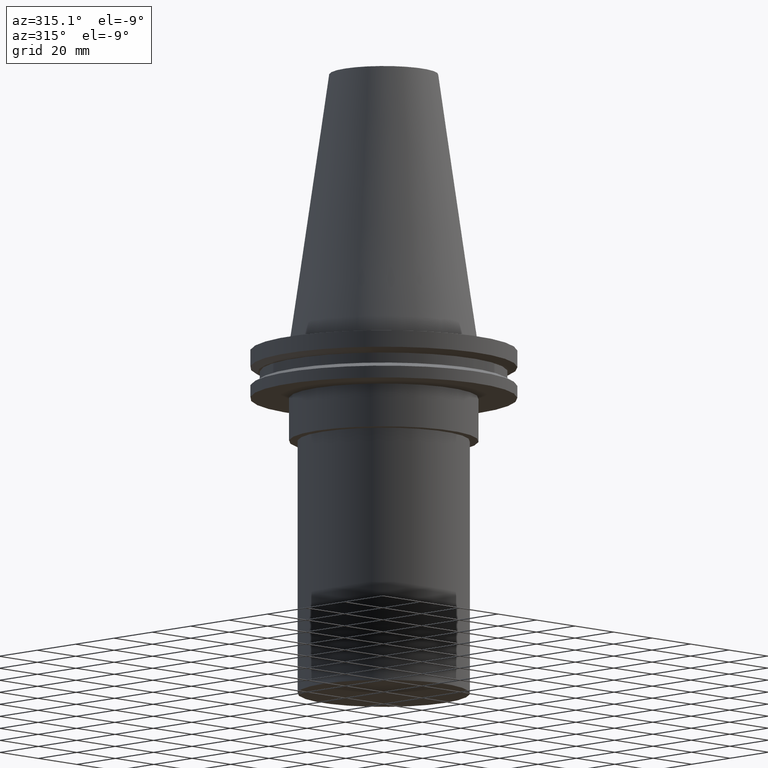
[diagram: clean part render]
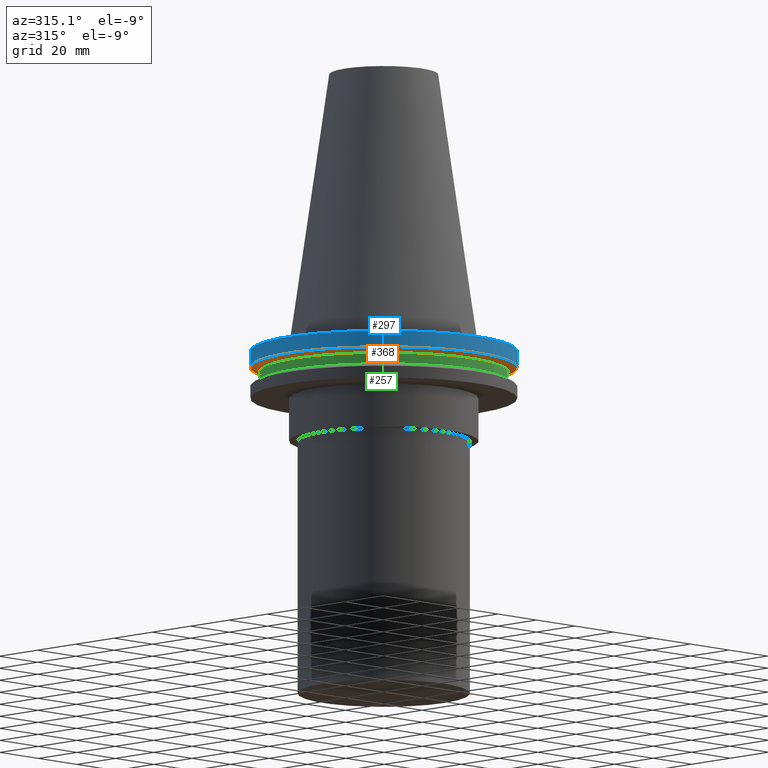
[diagram: same view with three faces highlighted in distinct colors, each labeled with its STEP entity id]
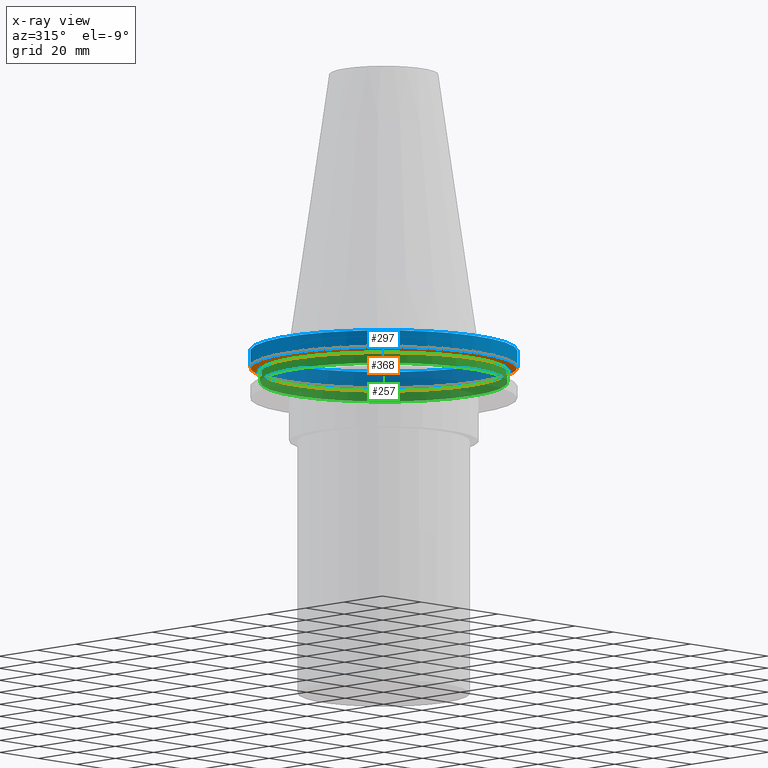
[diagram: x-ray of the same camera — body ghosted, the three highlighted faces saturated]
A machine part, auxiliary view with three faces highlighted in distinct colors.
The next image is the same camera in x-ray (body ghosted, the three faces saturated) — at least one of them is partly hidden behind the body in this view.
Their STEP definitions:

[orange] entity #368 — the highlighted conical surface has half-angle 60 deg.
#34 = DIRECTION ( 'NONE',  ( -0.000000000000000000, -0.000000000000000000, 1.000000000000000000 ) ) ;
#52 = CIRCLE ( 'NONE', #176, 49.21500000000000341 ) ;
#54 = DIRECTION ( 'NONE',  ( 1.000000000000000000, 0.000000000000000000, 0.000000000000000000 ) ) ;
#61 = CARTESIAN_POINT ( 'NONE',  ( 0.000000000000000000, 0.000000000000000000, -9.204999999999991189 ) ) ;
#64 = DIRECTION ( 'NONE',  ( 1.000000000000000000, 0.000000000000000000, 0.000000000000000000 ) ) ;
#69 = VERTEX_POINT ( 'NONE', #385 ) ;
#103 = EDGE_LOOP ( 'NONE', ( #109 ) ) ;
#106 = AXIS2_PLACEMENT_3D ( 'NONE', #150, #337, #54 ) ;
#109 = ORIENTED_EDGE ( 'NONE', *, *, #201, .T. ) ;
#129 = AXIS2_PLACEMENT_3D ( 'NONE', #61, #34, #64 ) ;
#150 = CARTESIAN_POINT ( 'NONE',  ( 0.000000000000000000, 0.000000000000000000, -9.204999999999991189 ) ) ;
#151 = DIRECTION ( 'NONE',  ( -0.000000000000000000, -0.000000000000000000, 1.000000000000000000 ) ) ;
#152 = DIRECTION ( 'NONE',  ( 1.000000000000000000, 0.000000000000000000, 0.000000000000000000 ) ) ;
#158 = CIRCLE ( 'NONE', #106, 46.43919780457007818 ) ;
#176 = AXIS2_PLACEMENT_3D ( 'NONE', #303, #151, #152 ) ;
#183 = EDGE_CURVE ( 'NONE', #69, #69, #52, .T. ) ;
#201 = EDGE_CURVE ( 'NONE', #320, #320, #158, .T. ) ;
#251 = FACE_BOUND ( 'NONE', #103, .T. ) ;
#280 = FACE_OUTER_BOUND ( 'NONE', #353, .T. ) ;
#293 = CARTESIAN_POINT ( 'NONE',  ( 46.43919780457007818, 0.000000000000000000, -9.204999999999991189 ) ) ;
#303 = CARTESIAN_POINT ( 'NONE',  ( 0.000000000000000000, 0.000000000000000000, -7.602389855251287187 ) ) ;
#304 = CONICAL_SURFACE ( 'NONE', #129, 46.43919780457007818, 1.047197551196575205 ) ;
#315 = ORIENTED_EDGE ( 'NONE', *, *, #183, .F. ) ;
#320 = VERTEX_POINT ( 'NONE', #293 ) ;
#337 = DIRECTION ( 'NONE',  ( -0.000000000000000000, -0.000000000000000000, 1.000000000000000000 ) ) ;
#353 = EDGE_LOOP ( 'NONE', ( #315 ) ) ;
#368 = ADVANCED_FACE ( 'NONE', ( #280, #251 ), #304, .T. ) ;
#385 = CARTESIAN_POINT ( 'NONE',  ( 49.21500000000000341, 0.000000000000000000, -7.602389855251287187 ) ) ;

[blue] entity #297 — the highlighted cylindrical surface (bore or boss wall) has radius 49.215 mm, axis along (-0, -0, 1).
#6 = FACE_OUTER_BOUND ( 'NONE', #294, .T. ) ;
#12 = CIRCLE ( 'NONE', #74, 49.21499999999999631 ) ;
#52 = CIRCLE ( 'NONE', #176, 49.21500000000000341 ) ;
#69 = VERTEX_POINT ( 'NONE', #385 ) ;
#74 = AXIS2_PLACEMENT_3D ( 'NONE', #99, #378, #192 ) ;
#94 = VERTEX_POINT ( 'NONE', #338 ) ;
#99 = CARTESIAN_POINT ( 'NONE',  ( 0.000000000000000000, 0.000000000000000000, -1.499999999999987566 ) ) ;
#104 = AXIS2_PLACEMENT_3D ( 'NONE', #219, #159, #287 ) ;
#151 = DIRECTION ( 'NONE',  ( -0.000000000000000000, -0.000000000000000000, 1.000000000000000000 ) ) ;
#152 = DIRECTION ( 'NONE',  ( 1.000000000000000000, 0.000000000000000000, 0.000000000000000000 ) ) ;
#159 = DIRECTION ( 'NONE',  ( -0.000000000000000000, -0.000000000000000000, 1.000000000000000000 ) ) ;
#176 = AXIS2_PLACEMENT_3D ( 'NONE', #303, #151, #152 ) ;
#183 = EDGE_CURVE ( 'NONE', #69, #69, #52, .T. ) ;
#192 = DIRECTION ( 'NONE',  ( 1.000000000000000000, 0.000000000000000000, 0.000000000000000000 ) ) ;
#219 = CARTESIAN_POINT ( 'NONE',  ( 0.000000000000000000, 0.000000000000000000, 101.5999999999999943 ) ) ;
#253 = CYLINDRICAL_SURFACE ( 'NONE', #104, 49.21499999999999631 ) ;
#256 = FACE_OUTER_BOUND ( 'NONE', #284, .T. ) ;
#284 = EDGE_LOOP ( 'NONE', ( #295 ) ) ;
#287 = DIRECTION ( 'NONE',  ( 1.000000000000000000, 0.000000000000000000, 0.000000000000000000 ) ) ;
#294 = EDGE_LOOP ( 'NONE', ( #372 ) ) ;
#295 = ORIENTED_EDGE ( 'NONE', *, *, #183, .T. ) ;
#297 = ADVANCED_FACE ( 'NONE', ( #6, #256 ), #253, .T. ) ;
#303 = CARTESIAN_POINT ( 'NONE',  ( 0.000000000000000000, 0.000000000000000000, -7.602389855251287187 ) ) ;
#338 = CARTESIAN_POINT ( 'NONE',  ( 49.21499999999999631, 0.000000000000000000, -1.499999999999987566 ) ) ;
#372 = ORIENTED_EDGE ( 'NONE', *, *, #381, .F. ) ;
#378 = DIRECTION ( 'NONE',  ( -0.000000000000000000, -0.000000000000000000, 1.000000000000000000 ) ) ;
#381 = EDGE_CURVE ( 'NONE', #94, #94, #12, .T. ) ;
#385 = CARTESIAN_POINT ( 'NONE',  ( 49.21500000000000341, 0.000000000000000000, -7.602389855251287187 ) ) ;

[green] entity #257 — the highlighted cylindrical surface (bore or boss wall) has radius 45.645 mm, axis along (-0, -0, 1).
#21 = CIRCLE ( 'NONE', #354, 45.64500000000000313 ) ;
#25 = DIRECTION ( 'NONE',  ( 1.000000000000000000, 0.000000000000000000, 0.000000000000000000 ) ) ;
#29 = VERTEX_POINT ( 'NONE', #88 ) ;
#79 = ORIENTED_EDGE ( 'NONE', *, *, #288, .F. ) ;
#88 = CARTESIAN_POINT ( 'NONE',  ( 45.64500000000000313, 0.000000000000000000, -13.05499999999999794 ) ) ;
#89 = FACE_OUTER_BOUND ( 'NONE', #234, .T. ) ;
#93 = DIRECTION ( 'NONE',  ( -0.000000000000000000, -0.000000000000000000, 1.000000000000000000 ) ) ;
#115 = DIRECTION ( 'NONE',  ( -0.000000000000000000, -0.000000000000000000, 1.000000000000000000 ) ) ;
#127 = DIRECTION ( 'NONE',  ( 1.000000000000000000, 0.000000000000000000, 0.000000000000000000 ) ) ;
#174 = FACE_OUTER_BOUND ( 'NONE', #289, .T. ) ;
#190 = CARTESIAN_POINT ( 'NONE',  ( 0.000000000000000000, 0.000000000000000000, -9.204999999999991189 ) ) ;
#215 = DIRECTION ( 'NONE',  ( 1.000000000000000000, 0.000000000000000000, 0.000000000000000000 ) ) ;
#222 = DIRECTION ( 'NONE',  ( -0.000000000000000000, -0.000000000000000000, 1.000000000000000000 ) ) ;
#223 = ORIENTED_EDGE ( 'NONE', *, *, #343, .T. ) ;
#234 = EDGE_LOOP ( 'NONE', ( #79 ) ) ;
#243 = VERTEX_POINT ( 'NONE', #275 ) ;
#257 = ADVANCED_FACE ( 'NONE', ( #89, #174 ), #273, .T. ) ;
#261 = CIRCLE ( 'NONE', #336, 45.64500000000000313 ) ;
#269 = CARTESIAN_POINT ( 'NONE',  ( 0.000000000000000000, 0.000000000000000000, 101.5999999999999943 ) ) ;
#273 = CYLINDRICAL_SURFACE ( 'NONE', #310, 45.64500000000000313 ) ;
#275 = CARTESIAN_POINT ( 'NONE',  ( 45.64500000000000313, 0.000000000000000000, -9.204999999999991189 ) ) ;
#288 = EDGE_CURVE ( 'NONE', #243, #243, #21, .T. ) ;
#289 = EDGE_LOOP ( 'NONE', ( #223 ) ) ;
#310 = AXIS2_PLACEMENT_3D ( 'NONE', #269, #115, #25 ) ;
#336 = AXIS2_PLACEMENT_3D ( 'NONE', #371, #93, #215 ) ;
#343 = EDGE_CURVE ( 'NONE', #29, #29, #261, .T. ) ;
#354 = AXIS2_PLACEMENT_3D ( 'NONE', #190, #222, #127 ) ;
#371 = CARTESIAN_POINT ( 'NONE',  ( 0.000000000000000000, 0.000000000000000000, -13.05499999999999794 ) ) ;